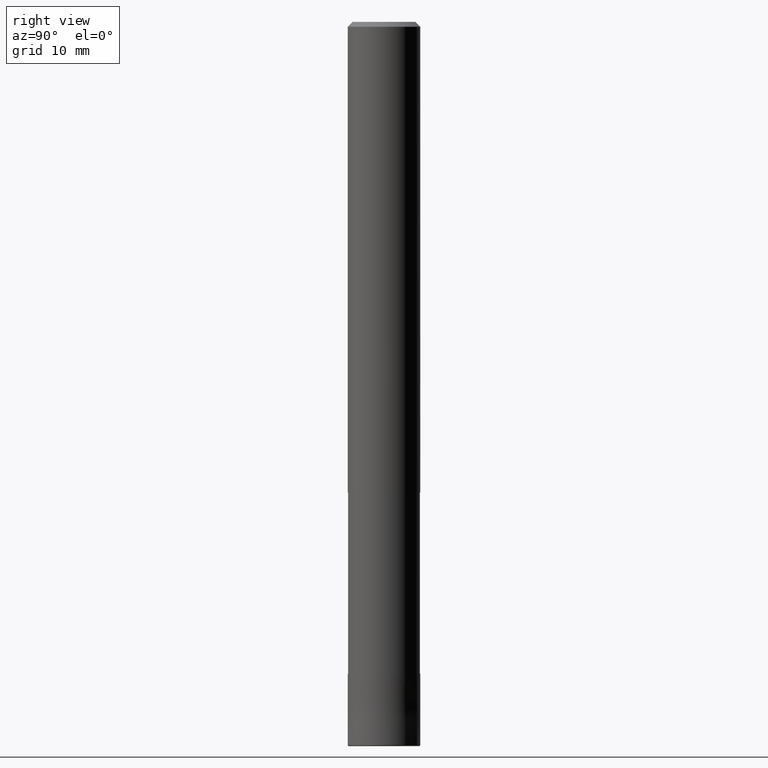
[diagram: clean part render]
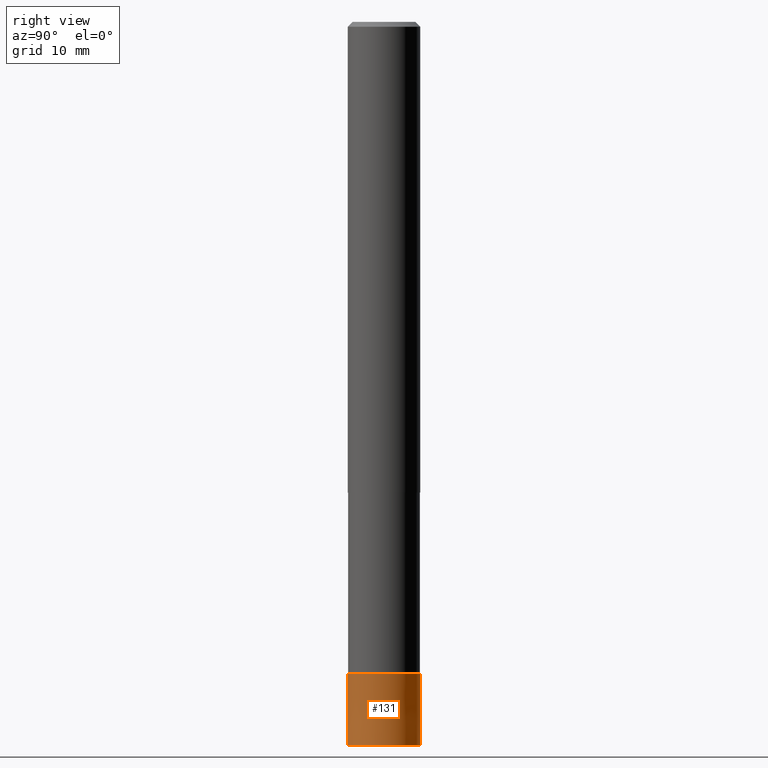
[diagram: same view with one face highlighted and labeled with its STEP entity id]
A machine part, right view. The second image highlights one B-rep face of the part: STEP entity #131.
In plain terms, the highlighted conical surface has half-angle 0.001 deg.
Its self-contained STEP definition (entity closure, byte-faithful):
#121=VERTEX_POINT('',#309);
#131=ADVANCED_FACE('',(#319),#320,.T.);
#209=VERTEX_POINT('',#409);
#215=EDGE_CURVE('',#273,#209,#415,.T.);
#223=EDGE_CURVE('',#273,#277,#424,.T.);
#233=EDGE_CURVE('',#121,#277,#434,.T.);
#251=EDGE_CURVE('',#209,#121,#454,.T.);
#273=VERTEX_POINT('',#482);
#277=VERTEX_POINT('',#486);
#309=CARTESIAN_POINT('',(3.67381906146713E-016,-3.0,-59.9));
#319=FACE_OUTER_BOUND('',#527,.T.);
#320=CONICAL_SURFACE('',#528,2.99995,1.69491525407856E-005);
#409=CARTESIAN_POINT('',(0.0,3.0,-59.9));
#415=LINE('',#646,#647);
#424=CIRCLE('',#657,2.9999);
#434=LINE('',#671,#672);
#454=CIRCLE('',#702,3.0);
#482=CARTESIAN_POINT('',(0.0,2.9999,-54.0));
#486=CARTESIAN_POINT('',(3.67369660083175E-016,-2.9999,-54.0));
#527=EDGE_LOOP('',(#766,#767,#768,#769));
#528=AXIS2_PLACEMENT_3D('',#770,#771,#772);
#646=CARTESIAN_POINT('',(-3.67375783114944E-016,2.99995,-56.95));
#647=VECTOR('',#892,1.0);
#657=AXIS2_PLACEMENT_3D('',#901,#902,#903);
#671=CARTESIAN_POINT('',(3.67375783114944E-016,-2.99995,-56.95));
#672=VECTOR('',#908,1.0);
#702=AXIS2_PLACEMENT_3D('',#935,#936,#937);
#766=ORIENTED_EDGE('',*,*,#215,.F.);
#767=ORIENTED_EDGE('',*,*,#223,.T.);
#768=ORIENTED_EDGE('',*,*,#233,.F.);
#769=ORIENTED_EDGE('',*,*,#251,.F.);
#770=CARTESIAN_POINT('',(0.0,0.0,-56.95));
#771=DIRECTION('',(0.0,-0.0,-1.0));
#772=DIRECTION('',(0.0,1.0,0.0));
#892=DIRECTION('',(-2.0756039892357E-021,1.69491525399741E-005,-0.999999999856363));
#901=CARTESIAN_POINT('',(0.0,0.0,-54.0));
#902=DIRECTION('',(0.0,0.0,-1.0));
#903=DIRECTION('',(0.0,1.0,0.0));
#908=DIRECTION('',(-2.0756039892357E-021,1.69491525399741E-005,0.999999999856363));
#935=CARTESIAN_POINT('',(0.0,0.0,-59.9));
#936=DIRECTION('',(0.0,0.0,-1.0));
#937=DIRECTION('',(0.0,1.0,0.0));